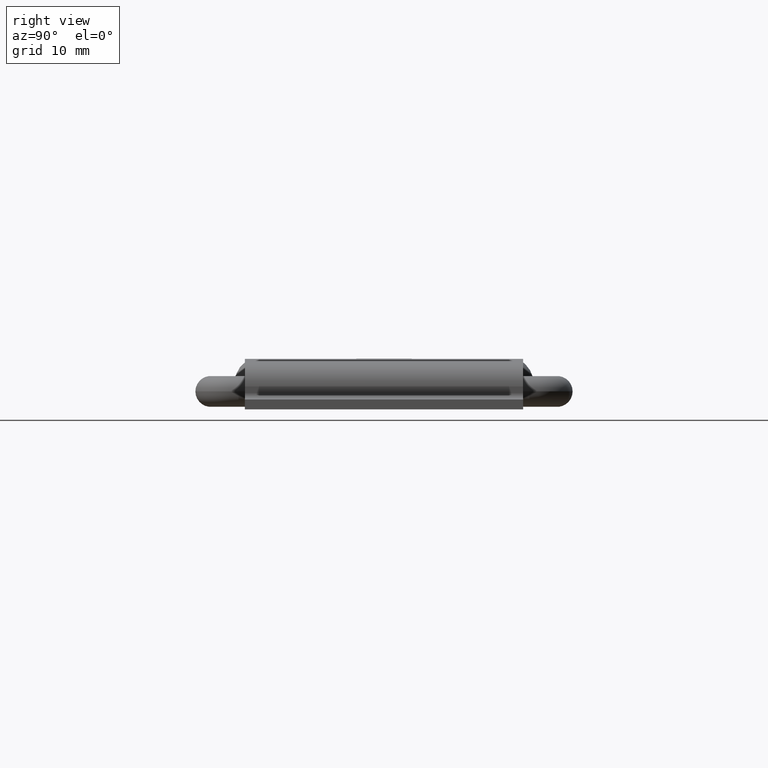
[diagram: clean part render]
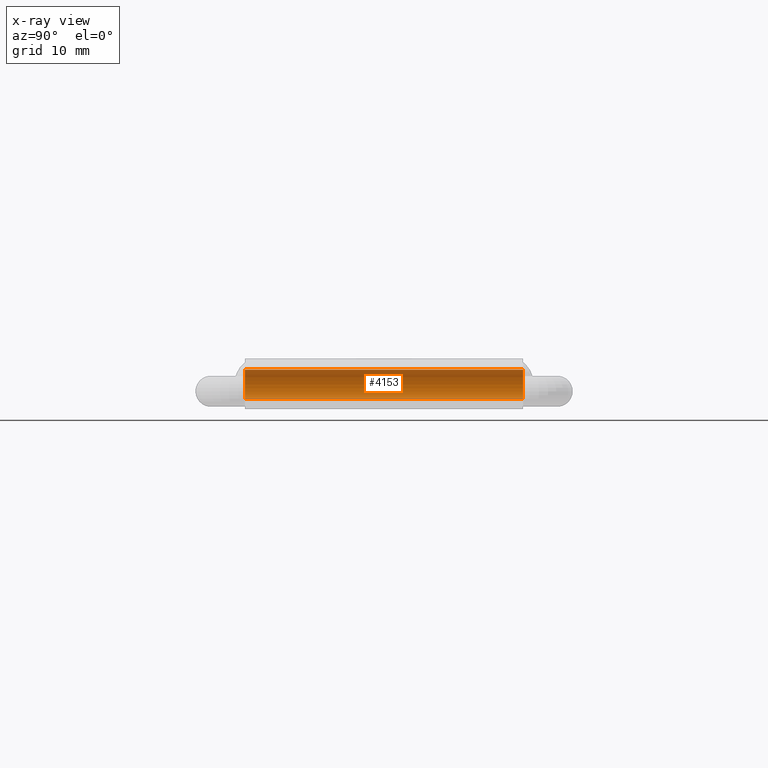
[diagram: x-ray — body ghosted, one internal face saturated and labeled with its STEP entity id]
A machine part, right view, then the same camera in x-ray: the body is ghosted and one INTERNAL B-rep face — a face not visible from any outside direction — is saturated and labeled: STEP entity #4153.
In plain terms, the highlighted cylindrical surface (edge-blend (fillet) strip) has radius 2.5 mm, axis along (0, -1, -0).
Its self-contained STEP definition (entity closure, byte-faithful):
#215 = DIRECTION ( 'NONE',  ( 0.0000000000000000000, 0.0000000000000000000, -1.000000000000000000 ) ) ;
#271 = DIRECTION ( 'NONE',  ( 0.0000000000000000000, 0.0000000000000000000, -1.000000000000000000 ) ) ;
#435 = AXIS2_PLACEMENT_3D ( 'NONE', #2226, #215, #2553 ) ;
#496 = DIRECTION ( 'NONE',  ( 0.0000000000000000000, 0.0000000000000000000, -1.000000000000000000 ) ) ;
#562 = CARTESIAN_POINT ( 'NONE',  ( -2.500000000000000000, 0.0000000000000000000, 0.0000000000000000000 ) ) ;
#765 = VERTEX_POINT ( 'NONE', #956 ) ;
#895 = DIRECTION ( 'NONE',  ( 0.0000000000000000000, 0.0000000000000000000, -1.000000000000000000 ) ) ;
#956 = CARTESIAN_POINT ( 'NONE',  ( -2.500000000000000000, 0.0000000000000000000, 45.00000000000000000 ) ) ;
#1094 = AXIS2_PLACEMENT_3D ( 'NONE', #3143, #1156, #3481 ) ;
#1156 = DIRECTION ( 'NONE',  ( 0.0000000000000000000, 0.0000000000000000000, -1.000000000000000000 ) ) ;
#1249 = ORIENTED_EDGE ( 'NONE', *, *, #4142, .F. ) ;
#1503 = CARTESIAN_POINT ( 'NONE',  ( 0.0000000000000000000, 0.0000000000000000000, 0.0000000000000000000 ) ) ;
#1666 = LINE ( 'NONE', #2270, #2424 ) ;
#1750 = CYLINDRICAL_SURFACE ( 'NONE', #2001, 2.500000000000000000 ) ;
#1834 = LINE ( 'NONE', #562, #3392 ) ;
#1849 = VERTEX_POINT ( 'NONE', #2510 ) ;
#2001 = AXIS2_PLACEMENT_3D ( 'NONE', #1503, #496, #3814 ) ;
#2052 = VERTEX_POINT ( 'NONE', #3266 ) ;
#2135 = VERTEX_POINT ( 'NONE', #3978 ) ;
#2226 = CARTESIAN_POINT ( 'NONE',  ( 0.0000000000000000000, 0.0000000000000000000, 45.00000000000000000 ) ) ;
#2270 = CARTESIAN_POINT ( 'NONE',  ( 2.500000000000000000, 3.061616997868383100E-016, 0.0000000000000000000 ) ) ;
#2424 = VECTOR ( 'NONE', #271, 1000.000000000000000 ) ;
#2510 = CARTESIAN_POINT ( 'NONE',  ( 2.500000000000000000, 3.061616997868383100E-016, 45.00000000000000000 ) ) ;
#2553 = DIRECTION ( 'NONE',  ( -1.000000000000000000, 0.0000000000000000000, 0.0000000000000000000 ) ) ;
#2739 = CIRCLE ( 'NONE', #435, 2.500000000000000000 ) ;
#2806 = FACE_OUTER_BOUND ( 'NONE', #3237, .T. ) ;
#3143 = CARTESIAN_POINT ( 'NONE',  ( 0.0000000000000000000, 0.0000000000000000000, 0.0000000000000000000 ) ) ;
#3237 = EDGE_LOOP ( 'NONE', ( #3775, #3921, #1249, #3501 ) ) ;
#3266 = CARTESIAN_POINT ( 'NONE',  ( -2.500000000000000000, 0.0000000000000000000, 0.0000000000000000000 ) ) ;
#3392 = VECTOR ( 'NONE', #895, 1000.000000000000000 ) ;
#3393 = EDGE_CURVE ( 'NONE', #765, #1849, #2739, .T. ) ;
#3461 = EDGE_CURVE ( 'NONE', #1849, #2135, #1666, .T. ) ;
#3481 = DIRECTION ( 'NONE',  ( -1.000000000000000000, 0.0000000000000000000, 0.0000000000000000000 ) ) ;
#3501 = ORIENTED_EDGE ( 'NONE', *, *, #3804, .F. ) ;
#3598 = CIRCLE ( 'NONE', #1094, 2.500000000000000000 ) ;
#3775 = ORIENTED_EDGE ( 'NONE', *, *, #3393, .T. ) ;
#3804 = EDGE_CURVE ( 'NONE', #765, #2052, #1834, .T. ) ;
#3814 = DIRECTION ( 'NONE',  ( -1.000000000000000000, 0.0000000000000000000, 0.0000000000000000000 ) ) ;
#3921 = ORIENTED_EDGE ( 'NONE', *, *, #3461, .T. ) ;
#3978 = CARTESIAN_POINT ( 'NONE',  ( 2.500000000000000000, 3.061616997868383100E-016, 0.0000000000000000000 ) ) ;
#4142 = EDGE_CURVE ( 'NONE', #2052, #2135, #3598, .T. ) ;
#4153 = ADVANCED_FACE ( 'NONE', ( #2806 ), #1750, .T. ) ;